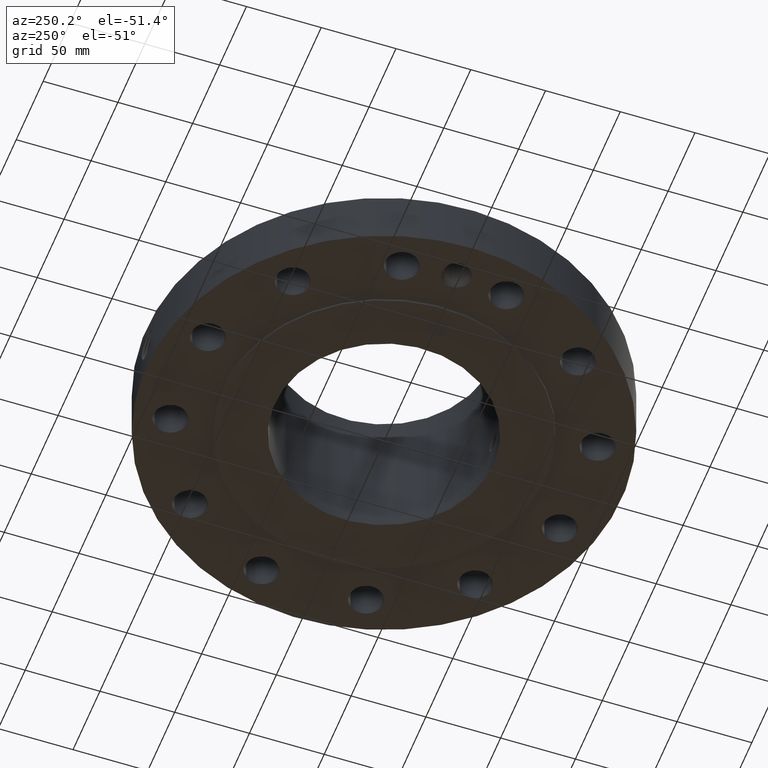
[diagram: clean part render]
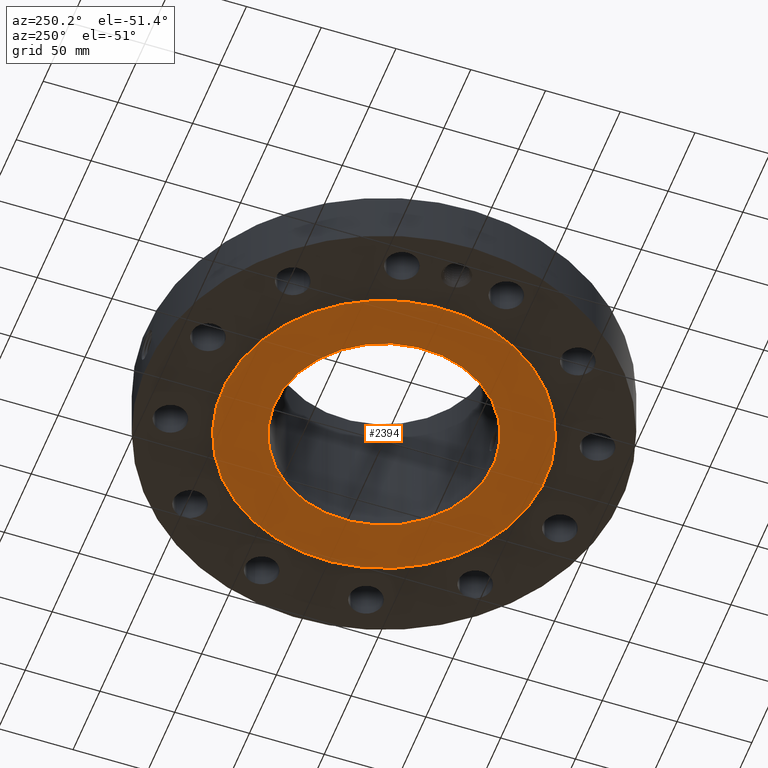
[diagram: same view with one face highlighted and labeled with its STEP entity id]
A machine part, auxiliary view. The second image highlights one B-rep face of the part: STEP entity #2394.
In plain terms, the highlighted planar face has unit normal (0, 0, -1).
Its self-contained STEP definition (entity closure, byte-faithful):
#1247=AXIS2_PLACEMENT_3D('Circle Axis2P3D',#1245,#1246,$) ;
#1273=AXIS2_PLACEMENT_3D('Circle Axis2P3D',#1271,#1272,$) ;
#2370=AXIS2_PLACEMENT_3D('Plane Axis2P3D',#2367,#2368,#2369) ;
#2378=AXIS2_PLACEMENT_3D('Circle Axis2P3D',#2376,#2377,$) ;
#2387=AXIS2_PLACEMENT_3D('Circle Axis2P3D',#2385,#2386,$) ;
#1245=CARTESIAN_POINT('Axis2P3D Location',(0.,0.,2.79741234551E-016)) ;
#1249=CARTESIAN_POINT('Vertex',(2.03755853908,3.72972588805,2.79741234551E-016)) ;
#1251=CARTESIAN_POINT('Vertex',(-2.03755853908,-3.72972588805,2.79741234551E-016)) ;
#1271=CARTESIAN_POINT('Axis2P3D Location',(0.,0.,2.79741234551E-016)) ;
#2367=CARTESIAN_POINT('Axis2P3D Location',(0.,2.88050000001,0.)) ;
#2376=CARTESIAN_POINT('Axis2P3D Location',(0.,0.,0.)) ;
#2380=CARTESIAN_POINT('Vertex',(1.38098526395,2.52787656954,-4.47585975282E-015)) ;
#2382=CARTESIAN_POINT('Vertex',(-1.38098526395,-2.52787656954,-4.47585975282E-015)) ;
#2385=CARTESIAN_POINT('Axis2P3D Location',(0.,0.,0.)) ;
#1246=DIRECTION('Axis2P3D Direction',(0.,0.,-0.0393700787402)) ;
#1272=DIRECTION('Axis2P3D Direction',(0.,0.,-0.0393700787402)) ;
#2368=DIRECTION('Axis2P3D Direction',(0.,0.,-0.0393700787402)) ;
#2369=DIRECTION('Axis2P3D XDirection',(0.0393700787402,0.,0.)) ;
#2377=DIRECTION('Axis2P3D Direction',(0.,0.,-0.0393700787402)) ;
#2386=DIRECTION('Axis2P3D Direction',(0.,0.,-0.0393700787402)) ;
#2373=ORIENTED_EDGE('',*,*,#1275,.T.) ;
#2374=ORIENTED_EDGE('',*,*,#1253,.T.) ;
#2391=ORIENTED_EDGE('',*,*,#2384,.F.) ;
#2392=ORIENTED_EDGE('',*,*,#2389,.F.) ;
#2393=FACE_BOUND('',#2390,.T.) ;
#2394=ADVANCED_FACE('PartBody',(#2375,#2393),#2371,.T.) ;
#1248=CIRCLE('generated circle',#1247,4.25000000002) ;
#1274=CIRCLE('generated circle',#1273,4.25000000002) ;
#2379=CIRCLE('generated circle',#2378,2.88050000001) ;
#2388=CIRCLE('generated circle',#2387,2.88050000001) ;
#1253=EDGE_CURVE('',#1250,#1252,#1248,.T.) ;
#1275=EDGE_CURVE('',#1252,#1250,#1274,.T.) ;
#2384=EDGE_CURVE('',#2381,#2383,#2379,.T.) ;
#2389=EDGE_CURVE('',#2383,#2381,#2388,.T.) ;
#2372=EDGE_LOOP('',(#2373,#2374)) ;
#2390=EDGE_LOOP('',(#2391,#2392)) ;
#2375=FACE_OUTER_BOUND('',#2372,.T.) ;
#2371=PLANE('',#2370) ;
#1250=VERTEX_POINT('',#1249) ;
#1252=VERTEX_POINT('',#1251) ;
#2381=VERTEX_POINT('',#2380) ;
#2383=VERTEX_POINT('',#2382) ;